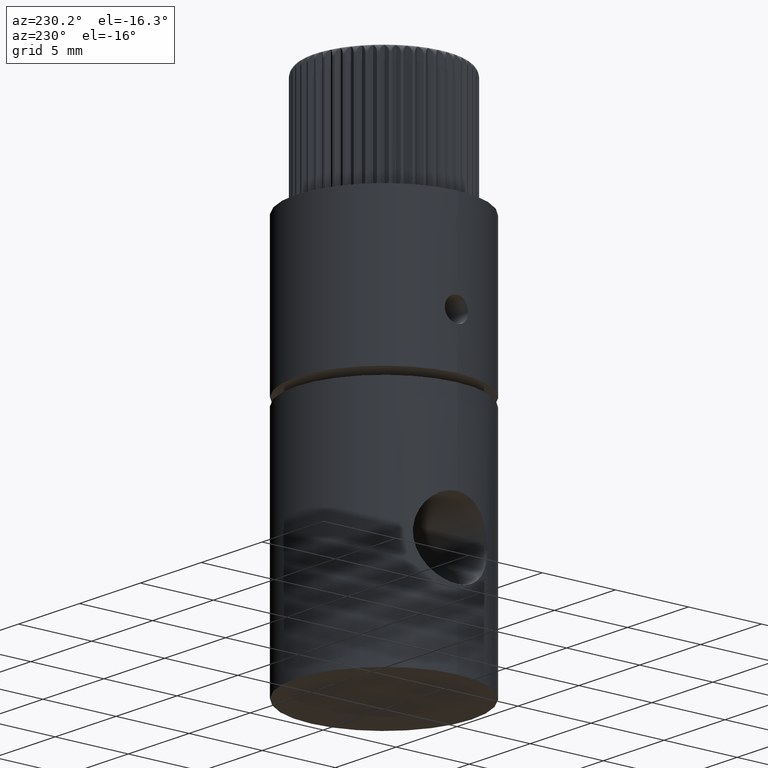
[diagram: clean part render]
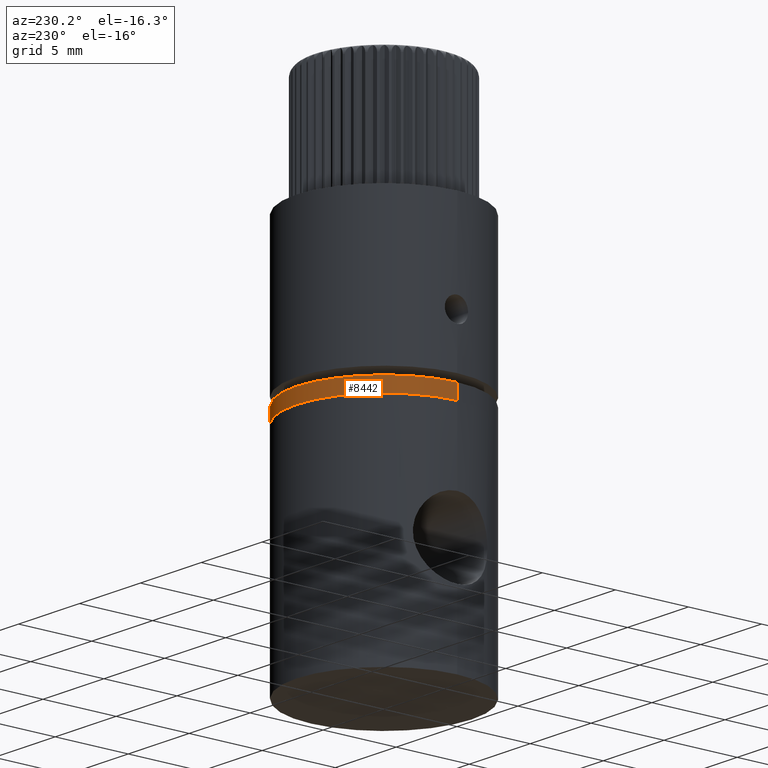
[diagram: same view with one face highlighted and labeled with its STEP entity id]
A machine part, auxiliary view. The second image highlights one B-rep face of the part: STEP entity #8442.
In plain terms, the highlighted cylindrical surface (partial cylindrical patch) has radius 6 mm, axis along (-0, -0, -1).
Its self-contained STEP definition (entity closure, byte-faithful):
#5 = CIRCLE ( 'NONE', #10660, 6.000000000000000900 ) ;
#284 = DIRECTION ( 'NONE',  ( -0.0000000000000000000, -0.0000000000000000000, -1.000000000000000000 ) ) ;
#454 = DIRECTION ( 'NONE',  ( -1.000000000000000000, 0.0000000000000000000, 0.0000000000000000000 ) ) ;
#570 = EDGE_CURVE ( 'NONE', #4730, #10367, #7398, .T. ) ;
#1103 = CARTESIAN_POINT ( 'NONE',  ( 6.000000000000000900, 7.347880794884120700E-016, 16.00000000000000000 ) ) ;
#2096 = ORIENTED_EDGE ( 'NONE', *, *, #6501, .T. ) ;
#2286 = DIRECTION ( 'NONE',  ( 1.000000000000000000, 0.0000000000000000000, 0.0000000000000000000 ) ) ;
#2716 = EDGE_CURVE ( 'NONE', #4181, #10367, #5, .T. ) ;
#2765 = CARTESIAN_POINT ( 'NONE',  ( -6.000000000000000900, 0.0000000000000000000, 15.00000000000000000 ) ) ;
#3189 = AXIS2_PLACEMENT_3D ( 'NONE', #3531, #5946, #7774 ) ;
#3531 = CARTESIAN_POINT ( 'NONE',  ( 0.0000000000000000000, 0.0000000000000000000, 16.00000000000000000 ) ) ;
#4002 = CARTESIAN_POINT ( 'NONE',  ( 0.0000000000000000000, 0.0000000000000000000, 16.00000000000000000 ) ) ;
#4181 = VERTEX_POINT ( 'NONE', #4808 ) ;
#4226 = CYLINDRICAL_SURFACE ( 'NONE', #10253, 6.000000000000000900 ) ;
#4717 = CARTESIAN_POINT ( 'NONE',  ( -6.000000000000000900, 0.0000000000000000000, 16.00000000000000000 ) ) ;
#4730 = VERTEX_POINT ( 'NONE', #4717 ) ;
#4808 = CARTESIAN_POINT ( 'NONE',  ( 6.000000000000000900, 7.347880794884120700E-016, 15.00000000000000000 ) ) ;
#5632 = CARTESIAN_POINT ( 'NONE',  ( -6.000000000000000900, 0.0000000000000000000, 16.00000000000000000 ) ) ;
#5946 = DIRECTION ( 'NONE',  ( 0.0000000000000000000, 0.0000000000000000000, 1.000000000000000000 ) ) ;
#6188 = ORIENTED_EDGE ( 'NONE', *, *, #2716, .T. ) ;
#6501 = EDGE_CURVE ( 'NONE', #7050, #4181, #10254, .T. ) ;
#7040 = CIRCLE ( 'NONE', #3189, 6.000000000000000900 ) ;
#7050 = VERTEX_POINT ( 'NONE', #8381 ) ;
#7398 = LINE ( 'NONE', #5632, #11009 ) ;
#7407 = DIRECTION ( 'NONE',  ( 0.0000000000000000000, 0.0000000000000000000, 1.000000000000000000 ) ) ;
#7774 = DIRECTION ( 'NONE',  ( 1.000000000000000000, 0.0000000000000000000, 0.0000000000000000000 ) ) ;
#7894 = EDGE_CURVE ( 'NONE', #7050, #4730, #7040, .T. ) ;
#7937 = FACE_OUTER_BOUND ( 'NONE', #9565, .T. ) ;
#8129 = DIRECTION ( 'NONE',  ( -0.0000000000000000000, -0.0000000000000000000, -1.000000000000000000 ) ) ;
#8239 = CARTESIAN_POINT ( 'NONE',  ( 0.0000000000000000000, 0.0000000000000000000, 15.00000000000000000 ) ) ;
#8287 = DIRECTION ( 'NONE',  ( -0.0000000000000000000, -0.0000000000000000000, -1.000000000000000000 ) ) ;
#8381 = CARTESIAN_POINT ( 'NONE',  ( 6.000000000000000900, 7.347880794884120700E-016, 16.00000000000000000 ) ) ;
#8442 = ADVANCED_FACE ( 'NONE', ( #7937 ), #4226, .T. ) ;
#8507 = VECTOR ( 'NONE', #284, 1000.000000000000000 ) ;
#9565 = EDGE_LOOP ( 'NONE', ( #9812, #2096, #6188, #10026 ) ) ;
#9812 = ORIENTED_EDGE ( 'NONE', *, *, #7894, .F. ) ;
#10026 = ORIENTED_EDGE ( 'NONE', *, *, #570, .F. ) ;
#10253 = AXIS2_PLACEMENT_3D ( 'NONE', #4002, #8129, #454 ) ;
#10254 = LINE ( 'NONE', #1103, #8507 ) ;
#10367 = VERTEX_POINT ( 'NONE', #2765 ) ;
#10660 = AXIS2_PLACEMENT_3D ( 'NONE', #8239, #7407, #2286 ) ;
#11009 = VECTOR ( 'NONE', #8287, 1000.000000000000000 ) ;